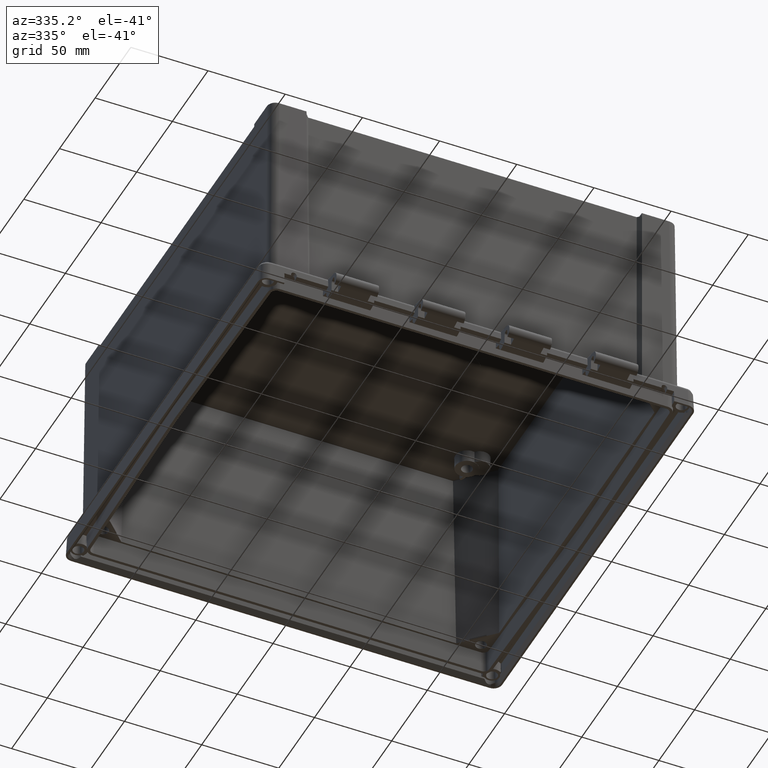
[diagram: clean part render]
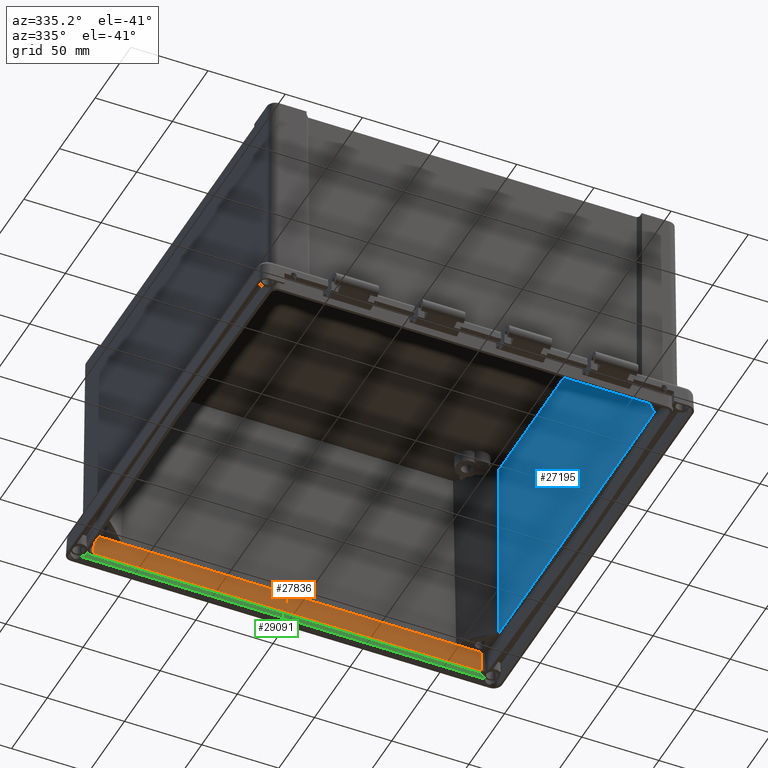
[diagram: same view with three faces highlighted in distinct colors, each labeled with its STEP entity id]
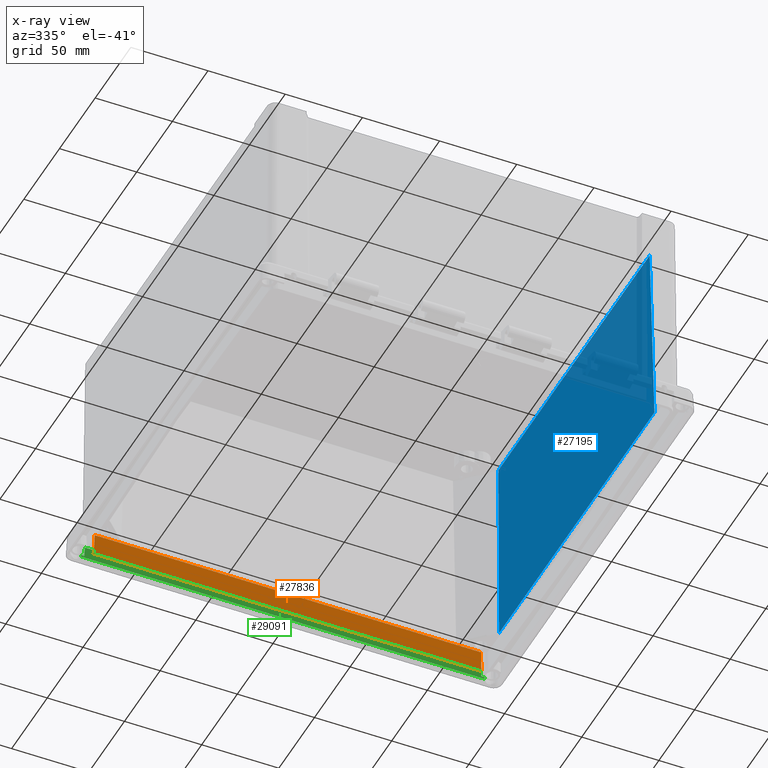
[diagram: x-ray of the same camera — body ghosted, the three highlighted faces saturated]
A machine part, auxiliary view with three faces highlighted in distinct colors.
The next image is the same camera in x-ray (body ghosted, the three faces saturated) — at least one of them is partly hidden behind the body in this view.
Their STEP definitions:

[orange] entity #27836 — the highlighted planar face has unit normal (0, -0.9994, -0.0349).
#5233 = VECTOR ( 'NONE', #5235, 1000.000000000000000 ) ;
#5235 = DIRECTION ( 'NONE',  ( -1.000000000000000000, 0.0000000000000000000, -0.0000000000000000000 ) ) ;
#5236 = CARTESIAN_POINT ( 'NONE',  ( -133.7072992288786700, 129.0952376915247200, 15.78999999999999600 ) ) ;
#5541 = CARTESIAN_POINT ( 'NONE',  ( -125.1974604045431900, 129.0952376915247400, 15.78999999999999900 ) ) ;
#5542 = DIRECTION ( 'NONE',  ( 0.0000000000000000000, 0.03489949670250096200, -0.9993908270190956500 ) ) ;
#5543 = VECTOR ( 'NONE', #5542, 1000.000000000000100 ) ;
#5544 = CARTESIAN_POINT ( 'NONE',  ( -125.1974604045431900, 129.1999999999999900, 12.78999999999999900 ) ) ;
#5545 = CARTESIAN_POINT ( 'NONE',  ( -125.1974604045431900, 129.1999999999999900, 12.79000000000001200 ) ) ;
#5547 = LINE ( 'NONE', #5544, #5543 ) ;
#5623 = CARTESIAN_POINT ( 'NONE',  ( 125.1974604045432200, 129.0952376915247400, 15.78999999999999900 ) ) ;
#5628 = CARTESIAN_POINT ( 'NONE',  ( 125.1974604045432200, 129.1999999999999900, 12.78999999999971800 ) ) ;
#5629 = DIRECTION ( 'NONE',  ( -0.0000000000000000000, -0.03489949670250096200, 0.9993908270190956500 ) ) ;
#5630 = VECTOR ( 'NONE', #5629, 1000.000000000000100 ) ;
#5631 = CARTESIAN_POINT ( 'NONE',  ( 125.1974604045432200, 129.1999999999999900, 12.78999999999999900 ) ) ;
#5632 = LINE ( 'NONE', #5631, #5630 ) ;
#5668 = LINE ( 'NONE', #5236, #5233 ) ;
#7059 = FACE_OUTER_BOUND ( 'NONE', #27837, .T. ) ;
#7060 = CARTESIAN_POINT ( 'NONE',  ( 125.5780308842174500, 129.5872713336634700, 1.699999999999999700 ) ) ;
#7061 = DIRECTION ( 'NONE',  ( -0.03427548855823389600, -0.03487899055459502800, 0.9988036077738139400 ) ) ;
#7062 = VECTOR ( 'NONE', #7061, 1000.000000000000000 ) ;
#7063 = CARTESIAN_POINT ( 'NONE',  ( 125.5780308842174300, 129.5872713336634700, 1.699999999999998400 ) ) ;
#7064 = LINE ( 'NONE', #7063, #7062 ) ;
#7074 = DIRECTION ( 'NONE',  ( -1.000000000000000000, 0.0000000000000000000, -0.0000000000000000000 ) ) ;
#7075 = VECTOR ( 'NONE', #7074, 1000.000000000000000 ) ;
#7076 = CARTESIAN_POINT ( 'NONE',  ( 0.0000000000000000000, 129.5872713336634700, 1.700000000000000000 ) ) ;
#7077 = LINE ( 'NONE', #7076, #7075 ) ;
#7078 = CARTESIAN_POINT ( 'NONE',  ( -125.5780308842174500, 129.5872713336634700, 1.700000000000000400 ) ) ;
#7079 = DIRECTION ( 'NONE',  ( -0.03427548855823797000, 0.03487899055459561100, -0.9988036077738138300 ) ) ;
#7080 = VECTOR ( 'NONE', #7079, 1000.000000000000000 ) ;
#7081 = CARTESIAN_POINT ( 'NONE',  ( -125.5732617007819000, 129.5824181773410000, 1.838976213671435800 ) ) ;
#7082 = DIRECTION ( 'NONE',  ( 0.0000000000000000000, 0.03489949670250096200, -0.9993908270190956500 ) ) ;
#7083 = DIRECTION ( 'NONE',  ( 0.0000000000000000000, -0.9993908270190957600, -0.03489949670250096900 ) ) ;
#7084 = CARTESIAN_POINT ( 'NONE',  ( -133.7072992288786700, 129.1999999999999900, 12.78999999999999900 ) ) ;
#7085 = AXIS2_PLACEMENT_3D ( 'NONE', #7084, #7083, #7082 ) ;
#7086 = LINE ( 'NONE', #7081, #7080 ) ;
#7087 = PLANE ( 'NONE',  #7085 ) ;
#27506 = VERTEX_POINT ( 'NONE', #5545 ) ;
#27508 = EDGE_CURVE ( 'NONE', #27509, #27506, #5547, .T. ) ;
#27509 = VERTEX_POINT ( 'NONE', #5541 ) ;
#27518 = VERTEX_POINT ( 'NONE', #5623 ) ;
#27521 = EDGE_CURVE ( 'NONE', #27522, #27518, #5632, .T. ) ;
#27522 = VERTEX_POINT ( 'NONE', #5628 ) ;
#27532 = EDGE_CURVE ( 'NONE', #27518, #27509, #5668, .T. ) ;
#27831 = EDGE_CURVE ( 'NONE', #27832, #27522, #7064, .T. ) ;
#27832 = VERTEX_POINT ( 'NONE', #7060 ) ;
#27836 = ADVANCED_FACE ( 'NONE', ( #7059 ), #7087, .T. ) ;
#27837 = EDGE_LOOP ( 'NONE', ( #27838, #27841, #27843, #27900, #27901, #27902 ) ) ;
#27838 = ORIENTED_EDGE ( 'NONE', *, *, #27839, .T. ) ;
#27839 = EDGE_CURVE ( 'NONE', #27506, #27840, #7086, .T. ) ;
#27840 = VERTEX_POINT ( 'NONE', #7078 ) ;
#27841 = ORIENTED_EDGE ( 'NONE', *, *, #27842, .F. ) ;
#27842 = EDGE_CURVE ( 'NONE', #27832, #27840, #7077, .T. ) ;
#27843 = ORIENTED_EDGE ( 'NONE', *, *, #27831, .T. ) ;
#27900 = ORIENTED_EDGE ( 'NONE', *, *, #27521, .T. ) ;
#27901 = ORIENTED_EDGE ( 'NONE', *, *, #27532, .T. ) ;
#27902 = ORIENTED_EDGE ( 'NONE', *, *, #27508, .T. ) ;

[blue] entity #27195 — the highlighted planar face has unit normal (-0.9999, 0, -0.014).
#3379 = CARTESIAN_POINT ( 'NONE',  ( 125.7684876510148700, 106.0233127206743300, 139.6569810901695800 ) ) ;
#3481 = CARTESIAN_POINT ( 'NONE',  ( 125.7684876510148700, -106.0233127206743700, 139.6569810901695800 ) ) ;
#3482 = DIRECTION ( 'NONE',  ( 0.0000000000000000000, 1.000000000000000000, 0.0000000000000000000 ) ) ;
#3483 = VECTOR ( 'NONE', #3482, 1000.000000000000000 ) ;
#3484 = CARTESIAN_POINT ( 'NONE',  ( 125.7684876510148900, -134.0224936177745600, 139.6569810901695800 ) ) ;
#3485 = LINE ( 'NONE', #3484, #3483 ) ;
#4101 = DIRECTION ( 'NONE',  ( 0.0000000000000000000, 1.000000000000000000, -0.0000000000000000000 ) ) ;
#4102 = VECTOR ( 'NONE', #4101, 1000.000000000000000 ) ;
#4103 = CARTESIAN_POINT ( 'NONE',  ( 127.4981093756524500, 0.0000000000000000000, 15.78999999999999900 ) ) ;
#4104 = LINE ( 'NONE', #4103, #4102 ) ;
#4106 = CARTESIAN_POINT ( 'NONE',  ( 127.4981093756524500, 108.8807931680683800, 15.78999999999999900 ) ) ;
#4107 = DIRECTION ( 'NONE',  ( 0.01395846737512607600, 0.02306056118043292900, -0.9996366198307167200 ) ) ;
#4108 = VECTOR ( 'NONE', #4107, 1000.000000000000100 ) ;
#4109 = CARTESIAN_POINT ( 'NONE',  ( 125.7684023703054500, 106.0231718297753400, 139.6630884741539700 ) ) ;
#4114 = LINE ( 'NONE', #4109, #4108 ) ;
#4154 = FACE_OUTER_BOUND ( 'NONE', #27196, .T. ) ;
#4230 = CARTESIAN_POINT ( 'NONE',  ( 127.4981093756524500, -108.8807931680683800, 15.78999999999999600 ) ) ;
#4231 = DIRECTION ( 'NONE',  ( 0.01395846737512607600, -0.02306056118043292900, -0.9996366198307167200 ) ) ;
#4232 = VECTOR ( 'NONE', #4231, 1000.000000000000100 ) ;
#4233 = CARTESIAN_POINT ( 'NONE',  ( 125.7684023703054500, -106.0231718297753400, 139.6630884741539700 ) ) ;
#4234 = DIRECTION ( 'NONE',  ( -0.01396218033914527000, 0.0000000000000000000, 0.9999025240093042400 ) ) ;
#4235 = DIRECTION ( 'NONE',  ( -0.9999025240093042400, 0.0000000000000000000, -0.01396218033914527000 ) ) ;
#4236 = CARTESIAN_POINT ( 'NONE',  ( 127.5400000000000200, -134.0224936177745600, 12.78999999999999900 ) ) ;
#4237 = AXIS2_PLACEMENT_3D ( 'NONE', #4236, #4235, #4234 ) ;
#4238 = LINE ( 'NONE', #4233, #4232 ) ;
#4239 = PLANE ( 'NONE',  #4237 ) ;
#26998 = VERTEX_POINT ( 'NONE', #3379 ) ;
#27060 = EDGE_CURVE ( 'NONE', #27061, #26998, #3485, .T. ) ;
#27061 = VERTEX_POINT ( 'NONE', #3481 ) ;
#27173 = ORIENTED_EDGE ( 'NONE', *, *, #27174, .T. ) ;
#27174 = EDGE_CURVE ( 'NONE', #26998, #27175, #4114, .T. ) ;
#27175 = VERTEX_POINT ( 'NONE', #4106 ) ;
#27176 = ORIENTED_EDGE ( 'NONE', *, *, #27177, .F. ) ;
#27177 = EDGE_CURVE ( 'NONE', #27199, #27175, #4104, .T. ) ;
#27195 = ADVANCED_FACE ( 'NONE', ( #4154 ), #4239, .T. ) ;
#27196 = EDGE_LOOP ( 'NONE', ( #27197, #27200, #27173, #27176 ) ) ;
#27197 = ORIENTED_EDGE ( 'NONE', *, *, #27198, .F. ) ;
#27198 = EDGE_CURVE ( 'NONE', #27061, #27199, #4238, .T. ) ;
#27199 = VERTEX_POINT ( 'NONE', #4230 ) ;
#27200 = ORIENTED_EDGE ( 'NONE', *, *, #27060, .T. ) ;

[green] entity #29091 — the highlighted planar face has unit normal (0, 0.9994, 0.0349).
#7573 = CARTESIAN_POINT ( 'NONE',  ( 130.7560226291179800, 136.3478859752789800, 2.820000206927030500 ) ) ;
#7575 = CARTESIAN_POINT ( 'NONE',  ( 130.7560226291179800, 136.3478859752789800, 2.820000206927030500 ) ) ;
#7576 = B_SPLINE_CURVE_WITH_KNOTS ( 'NONE', 3,
 ( #7573, #7625, #7624, #7623 ),
 .UNSPECIFIED., .F., .F.,
 ( 4, 4 ),
 ( 0.0000000000000000000, 1.000000000000000000 ),
 .UNSPECIFIED. ) ;
#7578 = CARTESIAN_POINT ( 'NONE',  ( 130.7421069676015300, 136.3066794745047900, 4.000000000011433500 ) ) ;
#7623 = CARTESIAN_POINT ( 'NONE',  ( 130.7421069676015300, 136.3066794745047900, 4.000000000011433500 ) ) ;
#7624 = CARTESIAN_POINT ( 'NONE',  ( 130.7467455201988000, 136.3204149711486900, 3.606666839118497100 ) ) ;
#7625 = CARTESIAN_POINT ( 'NONE',  ( 130.7513840727973200, 136.3341504677939600, 3.213333678218011500 ) ) ;
#8390 = CARTESIAN_POINT ( 'NONE',  ( -128.5589183161273500, 136.3066794778180800, 3.999999992063583100 ) ) ;
#8391 = CARTESIAN_POINT ( 'NONE',  ( -128.3146944104111100, 136.0789960591774300, 10.52000001663987000 ) ) ;
#8392 = B_SPLINE_CURVE_WITH_KNOTS ( 'NONE', 3,
 ( #8390, #8439, #8438, #8437 ),
 .UNSPECIFIED., .F., .F.,
 ( 4, 4 ),
 ( 0.0000000000000000000, 1.000000000000000000 ),
 .UNSPECIFIED. ) ;
#8393 = CARTESIAN_POINT ( 'NONE',  ( -128.5589183161273500, 136.3066794778180800, 3.999999992063583100 ) ) ;
#8437 = CARTESIAN_POINT ( 'NONE',  ( -128.3146944104111100, 136.0789960591774300, 10.52000001663987000 ) ) ;
#8438 = CARTESIAN_POINT ( 'NONE',  ( -128.3929124212442000, 136.1548944470926000, 8.346557615737227200 ) ) ;
#8439 = CARTESIAN_POINT ( 'NONE',  ( -128.4741716117487700, 136.2307891683154000, 6.173215042314415900 ) ) ;
#8455 = B_SPLINE_CURVE_WITH_KNOTS ( 'NONE', 3,
 ( #8503, #8502, #8501, #8500 ),
 .UNSPECIFIED., .F., .F.,
 ( 4, 4 ),
 ( 0.0000000000000000000, 1.000000000000000000 ),
 .UNSPECIFIED. ) ;
#8457 = CARTESIAN_POINT ( 'NONE',  ( 128.3146944104111400, 136.0789960591774300, 10.52000001663987100 ) ) ;
#8458 = DIRECTION ( 'NONE',  ( 1.000000000000000000, 0.0000000000000000000, -0.0000000000000000000 ) ) ;
#8459 = VECTOR ( 'NONE', #8458, 1000.000000000000000 ) ;
#8460 = CARTESIAN_POINT ( 'NONE',  ( 135.5033504513949700, 136.3066794745040800, 4.000000000000000000 ) ) ;
#8467 = LINE ( 'NONE', #8460, #8459 ) ;
#8500 = CARTESIAN_POINT ( 'NONE',  ( 128.5589183161273200, 136.3066794778180800, 3.999999992063583600 ) ) ;
#8501 = CARTESIAN_POINT ( 'NONE',  ( 128.4741716117487700, 136.2307891683154000, 6.173215042314415900 ) ) ;
#8502 = CARTESIAN_POINT ( 'NONE',  ( 128.3929124212441200, 136.1548944470925400, 8.346557615737229000 ) ) ;
#8503 = CARTESIAN_POINT ( 'NONE',  ( 128.3146944104111400, 136.0789960591774300, 10.52000001663987100 ) ) ;
#8504 = CARTESIAN_POINT ( 'NONE',  ( 128.5589183161273200, 136.3066794778180800, 3.999999992063583600 ) ) ;
#8832 = DIRECTION ( 'NONE',  ( 1.000000000000000000, 0.0000000000000000000, -0.0000000000000000000 ) ) ;
#8833 = VECTOR ( 'NONE', #8832, 1000.000000000000000 ) ;
#8834 = CARTESIAN_POINT ( 'NONE',  ( 135.5033504513949700, 136.3066794745040800, 3.999999999999999100 ) ) ;
#8839 = LINE ( 'NONE', #8834, #8833 ) ;
#9659 = DIRECTION ( 'NONE',  ( -1.000000000000000000, -0.0000000000000000000, 0.0000000000000000000 ) ) ;
#9660 = VECTOR ( 'NONE', #9659, 1000.000000000000000 ) ;
#9661 = CARTESIAN_POINT ( 'NONE',  ( 135.5033504513949700, 136.3478859825043200, 2.819999999999997200 ) ) ;
#9662 = LINE ( 'NONE', #9661, #9660 ) ;
#11501 = CARTESIAN_POINT ( 'NONE',  ( -128.3146944104111100, 136.0789960591774300, 10.52000001663987000 ) ) ;
#11502 = CARTESIAN_POINT ( 'NONE',  ( -42.77156306299191600, 136.0789960574179000, 10.52000000000000000 ) ) ;
#11503 = CARTESIAN_POINT ( 'NONE',  ( 42.77156306299194500, 136.0789960574179000, 10.52000000000000000 ) ) ;
#11504 = CARTESIAN_POINT ( 'NONE',  ( 128.3146944104111400, 136.0789960591774300, 10.52000001663987100 ) ) ;
#11508 = B_SPLINE_CURVE_WITH_KNOTS ( 'NONE', 3,
 ( #11504, #11503, #11502, #11501 ),
 .UNSPECIFIED., .F., .F.,
 ( 4, 4 ),
 ( 0.0000000000000000000, 1.000000000000000000 ),
 .UNSPECIFIED. ) ;
#11583 = FACE_OUTER_BOUND ( 'NONE', #29092, .T. ) ;
#11605 = DIRECTION ( 'NONE',  ( 0.0000000000000000000, -0.03489949670250072600, 0.9993908270190956500 ) ) ;
#11606 = DIRECTION ( 'NONE',  ( 0.0000000000000000000, 0.9993908270190957600, 0.03489949670250073300 ) ) ;
#11607 = CARTESIAN_POINT ( 'NONE',  ( 135.5033504513949700, 136.0789960574179000, 10.52000000000000000 ) ) ;
#11608 = AXIS2_PLACEMENT_3D ( 'NONE', #11607, #11606, #11605 ) ;
#11609 = PLANE ( 'NONE',  #11608 ) ;
#22157 = CARTESIAN_POINT ( 'NONE',  ( -130.7560226291180600, 136.3478859752788700, 2.820000206927025100 ) ) ;
#22158 = CARTESIAN_POINT ( 'NONE',  ( -130.7560226291180600, 136.3478859752788700, 2.820000206927025100 ) ) ;
#22159 = CARTESIAN_POINT ( 'NONE',  ( -130.7513840727973500, 136.3341504677939600, 3.213333678218011500 ) ) ;
#22160 = CARTESIAN_POINT ( 'NONE',  ( -130.7467455201988300, 136.3204149711486900, 3.606666839118497100 ) ) ;
#22161 = CARTESIAN_POINT ( 'NONE',  ( -130.7421069676015300, 136.3066794745047900, 4.000000000011433500 ) ) ;
#22162 = B_SPLINE_CURVE_WITH_KNOTS ( 'NONE', 3,
 ( #22161, #22160, #22159, #22158 ),
 .UNSPECIFIED., .F., .F.,
 ( 4, 4 ),
 ( 0.0000000000000000000, 1.000000000000000000 ),
 .UNSPECIFIED. ) ;
#22196 = CARTESIAN_POINT ( 'NONE',  ( -130.7421069676015300, 136.3066794745047900, 4.000000000011433500 ) ) ;
#27964 = VERTEX_POINT ( 'NONE', #7578 ) ;
#27966 = EDGE_CURVE ( 'NONE', #27967, #27964, #7576, .T. ) ;
#27967 = VERTEX_POINT ( 'NONE', #7575 ) ;
#28155 = VERTEX_POINT ( 'NONE', #8393 ) ;
#28157 = EDGE_CURVE ( 'NONE', #28155, #28158, #8392, .T. ) ;
#28158 = VERTEX_POINT ( 'NONE', #8391 ) ;
#28170 = EDGE_CURVE ( 'NONE', #28177, #27964, #8467, .T. ) ;
#28174 = VERTEX_POINT ( 'NONE', #8457 ) ;
#28176 = EDGE_CURVE ( 'NONE', #28174, #28177, #8455, .T. ) ;
#28177 = VERTEX_POINT ( 'NONE', #8504 ) ;
#28281 = EDGE_CURVE ( 'NONE', #32393, #28155, #8839, .T. ) ;
#28492 = EDGE_CURVE ( 'NONE', #27967, #32376, #9662, .T. ) ;
#29074 = ORIENTED_EDGE ( 'NONE', *, *, #28170, .F. ) ;
#29075 = ORIENTED_EDGE ( 'NONE', *, *, #28176, .F. ) ;
#29076 = ORIENTED_EDGE ( 'NONE', *, *, #29077, .T. ) ;
#29077 = EDGE_CURVE ( 'NONE', #28174, #28158, #11508, .T. ) ;
#29078 = ORIENTED_EDGE ( 'NONE', *, *, #28157, .F. ) ;
#29091 = ADVANCED_FACE ( 'NONE', ( #11583 ), #11609, .F. ) ;
#29092 = EDGE_LOOP ( 'NONE', ( #29093, #29094, #29095, #29096, #29074, #29075, #29076, #29078 ) ) ;
#29093 = ORIENTED_EDGE ( 'NONE', *, *, #28281, .F. ) ;
#29094 = ORIENTED_EDGE ( 'NONE', *, *, #32372, .T. ) ;
#29095 = ORIENTED_EDGE ( 'NONE', *, *, #28492, .F. ) ;
#29096 = ORIENTED_EDGE ( 'NONE', *, *, #27966, .T. ) ;
#32372 = EDGE_CURVE ( 'NONE', #32393, #32376, #22162, .T. ) ;
#32376 = VERTEX_POINT ( 'NONE', #22157 ) ;
#32393 = VERTEX_POINT ( 'NONE', #22196 ) ;